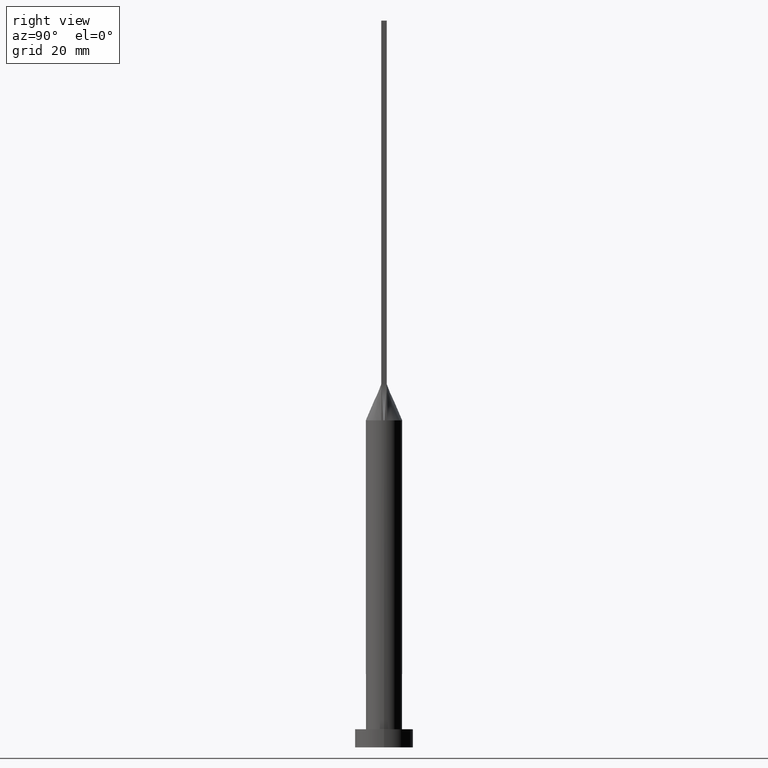
[diagram: clean part render]
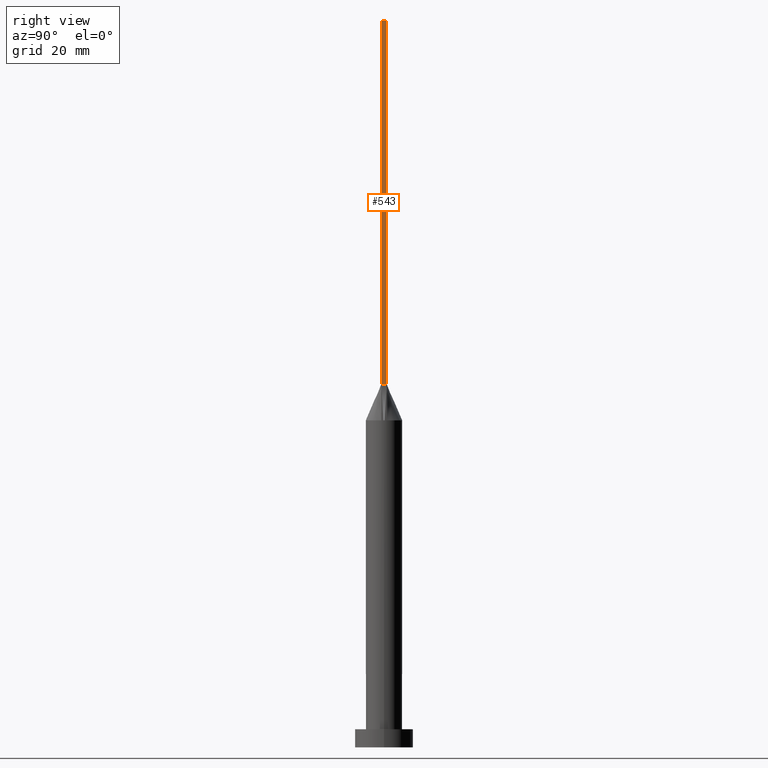
[diagram: same view with one face highlighted and labeled with its STEP entity id]
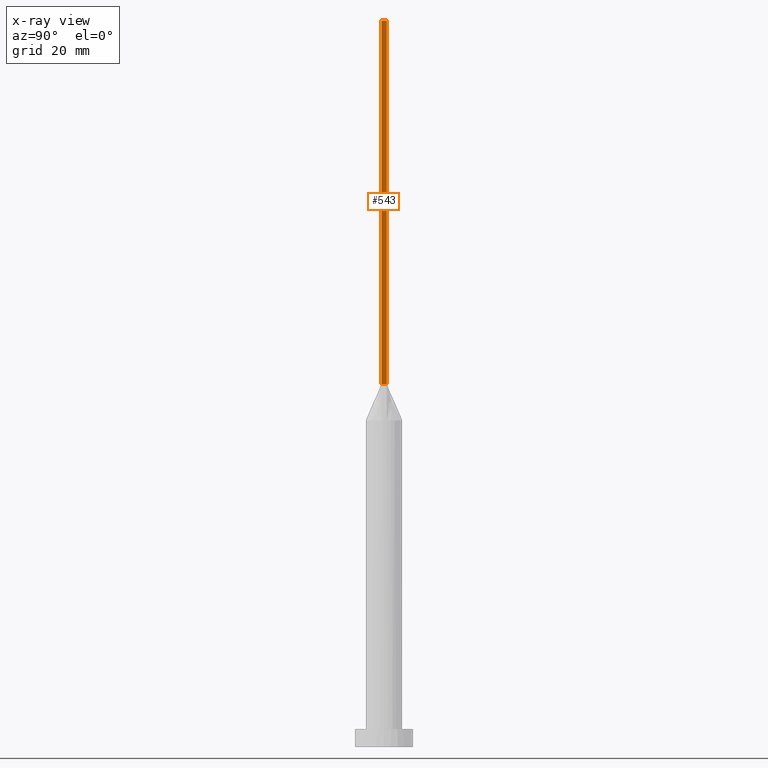
[diagram: x-ray of the same camera — body ghosted, the highlighted face saturated]
A machine part, right view. The second image highlights one B-rep face of the part: STEP entity #543.
The next image is the same camera in x-ray: the body ghosted, the highlighted face saturated — about 0% of this face is hidden behind the body in this view.
In plain terms, the highlighted planar face has unit normal (-1, 0, 0).
Its self-contained STEP definition (entity closure, byte-faithful):
#13 = EDGE_CURVE ( 'NONE', #149, #103, #350, .T. ) ;
#26 = CARTESIAN_POINT ( 'NONE',  ( 4.750000000000000000, 0.7500000000000002220, 100.0000000000000000 ) ) ;
#96 = EDGE_CURVE ( 'NONE', #248, #195, #267, .T. ) ;
#103 = VERTEX_POINT ( 'NONE', #595 ) ;
#125 = CARTESIAN_POINT ( 'NONE',  ( 4.750000000000000000, 0.7500000000000002220, 200.0000000000000000 ) ) ;
#138 = VECTOR ( 'NONE', #580, 1000.000000000000000 ) ;
#149 = VERTEX_POINT ( 'NONE', #545 ) ;
#169 = CARTESIAN_POINT ( 'NONE',  ( 4.750000000000000000, -0.7499999999999997780, 200.0000000000000000 ) ) ;
#174 = CARTESIAN_POINT ( 'NONE',  ( 4.750000000000000000, 0.7500000000000002220, 100.0000000000000000 ) ) ;
#177 = EDGE_CURVE ( 'NONE', #103, #195, #499, .T. ) ;
#195 = VERTEX_POINT ( 'NONE', #26 ) ;
#196 = EDGE_CURVE ( 'NONE', #149, #248, #217, .T. ) ;
#217 = LINE ( 'NONE', #455, #570 ) ;
#248 = VERTEX_POINT ( 'NONE', #422 ) ;
#266 = DIRECTION ( 'NONE',  ( 0.000000000000000000, 0.000000000000000000, 1.000000000000000000 ) ) ;
#267 = LINE ( 'NONE', #174, #425 ) ;
#273 = EDGE_LOOP ( 'NONE', ( #315, #603, #409, #358 ) ) ;
#315 = ORIENTED_EDGE ( 'NONE', *, *, #96, .T. ) ;
#339 = CARTESIAN_POINT ( 'NONE',  ( 4.750000000000000000, -0.7499999999999997780, 200.0000000000000000 ) ) ;
#350 = LINE ( 'NONE', #339, #138 ) ;
#358 = ORIENTED_EDGE ( 'NONE', *, *, #196, .T. ) ;
#385 = VECTOR ( 'NONE', #541, 1000.000000000000000 ) ;
#408 = DIRECTION ( 'NONE',  ( -0.000000000000000000, -0.000000000000000000, -1.000000000000000000 ) ) ;
#409 = ORIENTED_EDGE ( 'NONE', *, *, #13, .F. ) ;
#410 = PLANE ( 'NONE',  #527 ) ;
#422 = CARTESIAN_POINT ( 'NONE',  ( 4.750000000000000000, -0.7499999999999997780, 100.0000000000000000 ) ) ;
#425 = VECTOR ( 'NONE', #450, 1000.000000000000000 ) ;
#450 = DIRECTION ( 'NONE',  ( -0.000000000000000000, 1.000000000000000000, -0.000000000000000000 ) ) ;
#455 = CARTESIAN_POINT ( 'NONE',  ( 4.750000000000000000, -0.7499999999999997780, 200.0000000000000000 ) ) ;
#499 = LINE ( 'NONE', #125, #385 ) ;
#527 = AXIS2_PLACEMENT_3D ( 'NONE', #169, #540, #266 ) ;
#540 = DIRECTION ( 'NONE',  ( -1.000000000000000000, 0.000000000000000000, 0.000000000000000000 ) ) ;
#541 = DIRECTION ( 'NONE',  ( -0.000000000000000000, -0.000000000000000000, -1.000000000000000000 ) ) ;
#543 = ADVANCED_FACE ( 'NONE', ( #594 ), #410, .F. ) ;
#545 = CARTESIAN_POINT ( 'NONE',  ( 4.750000000000000000, -0.7499999999999997780, 200.0000000000000000 ) ) ;
#570 = VECTOR ( 'NONE', #408, 1000.000000000000000 ) ;
#580 = DIRECTION ( 'NONE',  ( 0.000000000000000000, 1.000000000000000000, 0.000000000000000000 ) ) ;
#594 = FACE_OUTER_BOUND ( 'NONE', #273, .T. ) ;
#595 = CARTESIAN_POINT ( 'NONE',  ( 4.750000000000000000, 0.7500000000000002220, 200.0000000000000000 ) ) ;
#603 = ORIENTED_EDGE ( 'NONE', *, *, #177, .F. ) ;